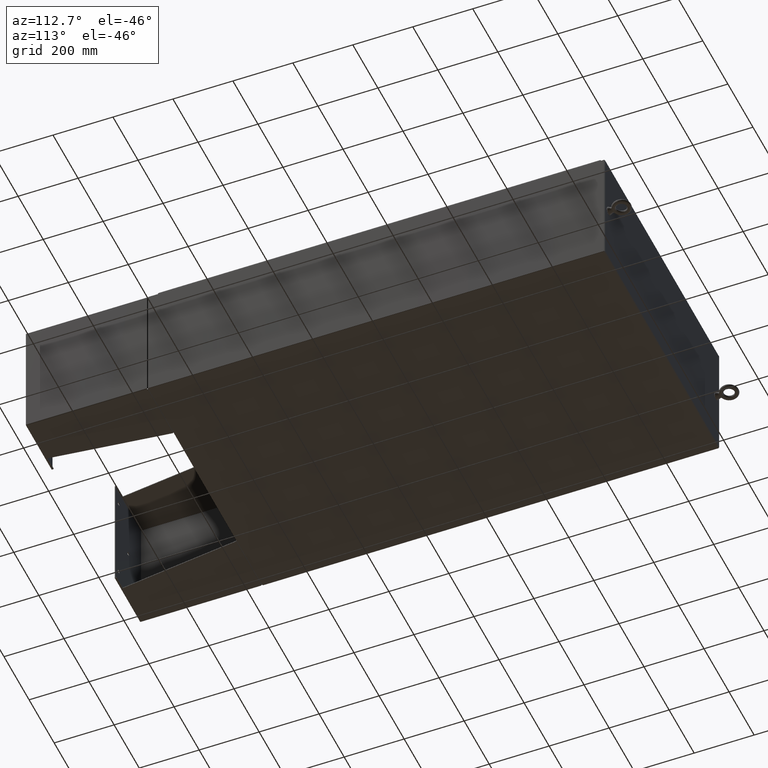
[diagram: clean part render]
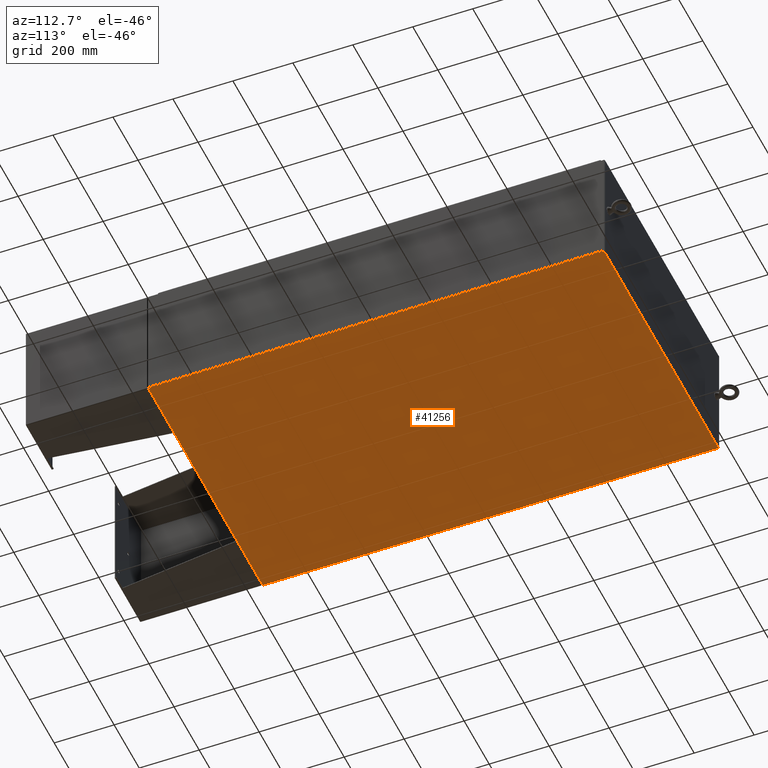
[diagram: same view with one face highlighted and labeled with its STEP entity id]
A machine part, auxiliary view. The second image highlights one B-rep face of the part: STEP entity #41256.
In plain terms, the highlighted planar face has unit normal (0, 0, -1).
Its self-contained STEP definition (entity closure, byte-faithful):
#1080 = VERTEX_POINT ( 'NONE', #42943 ) ;
#2255 = CARTESIAN_POINT ( 'NONE',  ( -18.00000000000000400, -29.92530000000001100, -0.07470000000000000300 ) ) ;
#4681 = CARTESIAN_POINT ( 'NONE',  ( 17.91229999999999800, 29.92529999999999300, -0.07469999999999994700 ) ) ;
#8532 = CARTESIAN_POINT ( 'NONE',  ( -17.91230000000000200, -29.92530000000002100, -0.07469999999999994700 ) ) ;
#8981 = VECTOR ( 'NONE', #13344, 39.37007874015748100 ) ;
#9210 = LINE ( 'NONE', #4681, #56130 ) ;
#9531 = ORIENTED_EDGE ( 'NONE', *, *, #17330, .F. ) ;
#11506 = VECTOR ( 'NONE', #61823, 39.37007874015748100 ) ;
#12832 = AXIS2_PLACEMENT_3D ( 'NONE', #33635, #58038, #28956 ) ;
#13344 = DIRECTION ( 'NONE',  ( -0.0000000000000000000, 1.000000000000000000, -0.0000000000000000000 ) ) ;
#17330 = EDGE_CURVE ( 'NONE', #36178, #1080, #20546, .T. ) ;
#18452 = ORIENTED_EDGE ( 'NONE', *, *, #49562, .T. ) ;
#19062 = VECTOR ( 'NONE', #57545, 39.37007874015748100 ) ;
#20546 = LINE ( 'NONE', #58375, #19062 ) ;
#23026 = EDGE_CURVE ( 'NONE', #33117, #55563, #24315, .T. ) ;
#24315 = LINE ( 'NONE', #2255, #11506 ) ;
#28956 = DIRECTION ( 'NONE',  ( -1.000000000000000000, 0.0000000000000000000, -0.0000000000000000000 ) ) ;
#30338 = EDGE_LOOP ( 'NONE', ( #41244, #18452, #9531, #55570 ) ) ;
#33117 = VERTEX_POINT ( 'NONE', #34725 ) ;
#33635 = CARTESIAN_POINT ( 'NONE',  ( 0.0000000000000000000, 0.0000000000000000000, -0.07470000000000000300 ) ) ;
#34638 = LINE ( 'NONE', #8532, #8981 ) ;
#34725 = CARTESIAN_POINT ( 'NONE',  ( -17.91230000000000200, -29.92530000000001100, -0.07469999999999994700 ) ) ;
#36178 = VERTEX_POINT ( 'NONE', #56846 ) ;
#38212 = PLANE ( 'NONE',  #12832 ) ;
#40816 = FACE_OUTER_BOUND ( 'NONE', #30338, .T. ) ;
#41244 = ORIENTED_EDGE ( 'NONE', *, *, #23026, .F. ) ;
#41256 = ADVANCED_FACE ( 'NONE', ( #40816 ), #38212, .T. ) ;
#42943 = CARTESIAN_POINT ( 'NONE',  ( -17.91230000000000200, 29.92529999999998600, -0.07470000000000000300 ) ) ;
#47063 = EDGE_CURVE ( 'NONE', #36178, #55563, #9210, .T. ) ;
#49562 = EDGE_CURVE ( 'NONE', #33117, #1080, #34638, .T. ) ;
#52432 = CARTESIAN_POINT ( 'NONE',  ( 17.91229999999999800, -29.92530000000001100, -0.07470000000000000300 ) ) ;
#55563 = VERTEX_POINT ( 'NONE', #52432 ) ;
#55570 = ORIENTED_EDGE ( 'NONE', *, *, #47063, .T. ) ;
#56130 = VECTOR ( 'NONE', #57723, 39.37007874015748100 ) ;
#56846 = CARTESIAN_POINT ( 'NONE',  ( 17.91229999999999800, 29.92529999999999300, -0.07469999999999994700 ) ) ;
#57545 = DIRECTION ( 'NONE',  ( -1.000000000000000000, -0.0000000000000000000, -0.0000000000000000000 ) ) ;
#57723 = DIRECTION ( 'NONE',  ( -0.0000000000000000000, -1.000000000000000000, -0.0000000000000000000 ) ) ;
#58038 = DIRECTION ( 'NONE',  ( 0.0000000000000000000, 0.0000000000000000000, -1.000000000000000000 ) ) ;
#58375 = CARTESIAN_POINT ( 'NONE',  ( -18.00000000000000400, 29.92529999999998900, -0.07470000000000000300 ) ) ;
#61823 = DIRECTION ( 'NONE',  ( 1.000000000000000000, 0.0000000000000000000, 0.0000000000000000000 ) ) ;